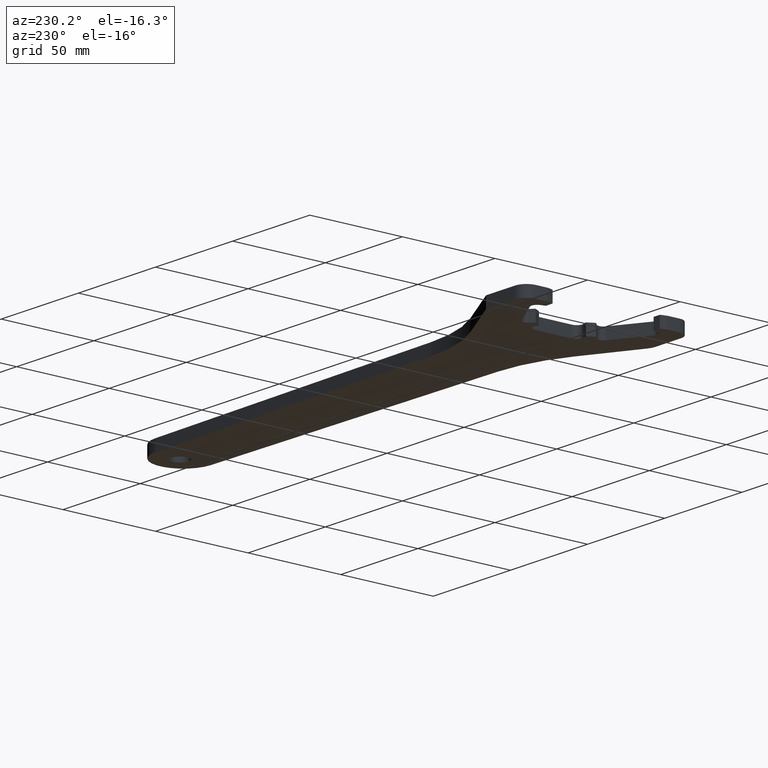
[diagram: clean part render]
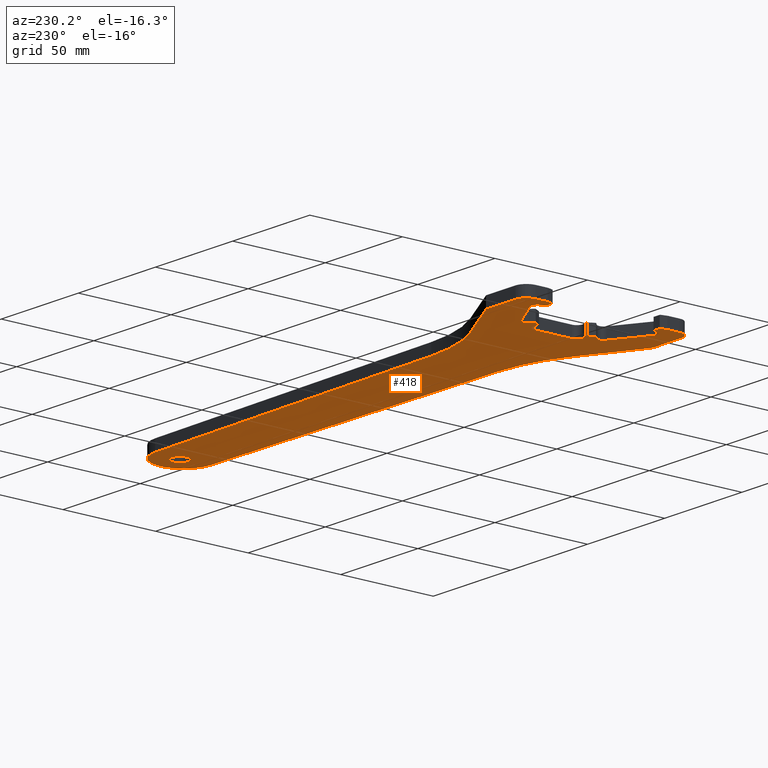
[diagram: same view with one face highlighted and labeled with its STEP entity id]
A machine part, auxiliary view. The second image highlights one B-rep face of the part: STEP entity #418.
In plain terms, the highlighted planar face has unit normal (0, 0, 1).
Its self-contained STEP definition (entity closure, byte-faithful):
#2 = CIRCLE ( 'NONE', #1510, 80.00000000000000000 ) ;
#7 = VERTEX_POINT ( 'NONE', #1473 ) ;
#13 = CARTESIAN_POINT ( 'NONE',  ( -3.016635672999999700, 38.83084647499998700, 0.0000000000000000000 ) ) ;
#14 = VERTEX_POINT ( 'NONE', #666 ) ;
#16 = CARTESIAN_POINT ( 'NONE',  ( 273.9833643297888000, 0.0000000000000000000, 0.0000000000000000000 ) ) ;
#17 = AXIS2_PLACEMENT_3D ( 'NONE', #1421, #649, #1554 ) ;
#19 = AXIS2_PLACEMENT_3D ( 'NONE', #47, #929, #186 ) ;
#26 = ORIENTED_EDGE ( 'NONE', *, *, #1284, .F. ) ;
#36 = CARTESIAN_POINT ( 'NONE',  ( -3.016635672999999700, -38.83084647553874900, 0.0000000000000000000 ) ) ;
#42 = ORIENTED_EDGE ( 'NONE', *, *, #836, .F. ) ;
#47 = CARTESIAN_POINT ( 'NONE',  ( 24.53900972800000300, 16.29529459299999800, 0.0000000000000000000 ) ) ;
#54 = CIRCLE ( 'NONE', #340, 0.4000000000000004100 ) ;
#70 = DIRECTION ( 'NONE',  ( 0.2488483512324421700, -0.9685424606535817400, 0.0000000000000000000 ) ) ;
#71 = CARTESIAN_POINT ( 'NONE',  ( 272.2333643269999500, 14.99791652200000100, 0.0000000000000000000 ) ) ;
#86 = CARTESIAN_POINT ( 'NONE',  ( -1.843180906000000400, -29.39999999999999900, 0.0000000000000000000 ) ) ;
#87 = DIRECTION ( 'NONE',  ( -1.000000000000000000, 0.0000000000000000000, 0.0000000000000000000 ) ) ;
#89 = CIRCLE ( 'NONE', #941, 2.999999999999999100 ) ;
#93 = CARTESIAN_POINT ( 'NONE',  ( -3.016635673000005000, 32.35979766100003700, -1.084202172485504400E-016 ) ) ;
#94 = CARTESIAN_POINT ( 'NONE',  ( 28.72244948499999500, -13.31577161400000100, 0.0000000000000000000 ) ) ;
#95 = CIRCLE ( 'NONE', #1190, 7.999999999999996400 ) ;
#106 = DIRECTION ( 'NONE',  ( -1.000000000000000000, 0.0000000000000000000, 0.0000000000000000000 ) ) ;
#109 = EDGE_CURVE ( 'NONE', #730, #1346, #920, .T. ) ;
#114 = CARTESIAN_POINT ( 'NONE',  ( 7.226659042171187200, 33.35482269090114500, 2.168404344971008900E-016 ) ) ;
#120 = VERTEX_POINT ( 'NONE', #475 ) ;
#123 = VECTOR ( 'NONE', #1587, 1000.000000000000000 ) ;
#126 = EDGE_CURVE ( 'NONE', #157, #1552, #1232, .T. ) ;
#129 = CARTESIAN_POINT ( 'NONE',  ( 24.13900972800000800, 16.29529459299999800, 0.0000000000000000000 ) ) ;
#131 = AXIS2_PLACEMENT_3D ( 'NONE', #16, #898, #150 ) ;
#132 = CARTESIAN_POINT ( 'NONE',  ( 273.9833643297888000, 0.0000000000000000000, 0.0000000000000000000 ) ) ;
#135 = VECTOR ( 'NONE', #1194, 1000.000000000000100 ) ;
#138 = ORIENTED_EDGE ( 'NONE', *, *, #214, .F. ) ;
#139 = CARTESIAN_POINT ( 'NONE',  ( 142.8533643269999800, -28.99999998928748500, 0.0000000000000000000 ) ) ;
#141 = CARTESIAN_POINT ( 'NONE',  ( 2.828881562999999900, -31.53320361500000500, 0.0000000000000000000 ) ) ;
#144 = LINE ( 'NONE', #949, #755 ) ;
#147 = EDGE_CURVE ( 'NONE', #7, #497, #883, .T. ) ;
#150 = DIRECTION ( 'NONE',  ( 1.000000000000000000, 0.0000000000000000000, 0.0000000000000000000 ) ) ;
#156 = AXIS2_PLACEMENT_3D ( 'NONE', #1357, #595, #1494 ) ;
#157 = VERTEX_POINT ( 'NONE', #1618 ) ;
#171 = CARTESIAN_POINT ( 'NONE',  ( 24.25909763881149300, 16.58103787281533700, 3.252606517456513300E-016 ) ) ;
#173 = AXIS2_PLACEMENT_3D ( 'NONE', #1227, #459, #1342 ) ;
#175 = VERTEX_POINT ( 'NONE', #114 ) ;
#178 = ORIENTED_EDGE ( 'NONE', *, *, #1579, .F. ) ;
#181 = CIRCLE ( 'NONE', #372, 6.000000000000000000 ) ;
#186 = DIRECTION ( 'NONE',  ( -1.000000000000000000, 0.0000000000000000000, 0.0000000000000000000 ) ) ;
#189 = VECTOR ( 'NONE', #1269, 1000.000000000000200 ) ;
#193 = DIRECTION ( 'NONE',  ( -0.0000000000000000000, -0.0000000000000000000, 1.000000000000000000 ) ) ;
#203 = EDGE_CURVE ( 'NONE', #305, #688, #1146, .T. ) ;
#213 = ORIENTED_EDGE ( 'NONE', *, *, #126, .F. ) ;
#214 = EDGE_CURVE ( 'NONE', #965, #157, #1189, .T. ) ;
#216 = LINE ( 'NONE', #919, #834 ) ;
#219 = DIRECTION ( 'NONE',  ( -1.000000000000000000, 0.0000000000000000000, 0.0000000000000000000 ) ) ;
#227 = EDGE_CURVE ( 'NONE', #1384, #730, #181, .T. ) ;
#234 = CIRCLE ( 'NONE', #1175, 3.000000000000000900 ) ;
#236 = LINE ( 'NONE', #614, #189 ) ;
#244 = VERTEX_POINT ( 'NONE', #1472 ) ;
#246 = EDGE_CURVE ( 'NONE', #1431, #1292, #425, .T. ) ;
#249 = LINE ( 'NONE', #1047, #627 ) ;
#250 = LINE ( 'NONE', #71, #1254 ) ;
#254 = ORIENTED_EDGE ( 'NONE', *, *, #387, .F. ) ;
#256 = AXIS2_PLACEMENT_3D ( 'NONE', #306, #1200, #429 ) ;
#257 = DIRECTION ( 'NONE',  ( 1.000000000000000000, 0.0000000000000000000, 0.0000000000000000000 ) ) ;
#261 = PLANE ( 'NONE',  #1392 ) ;
#264 = ORIENTED_EDGE ( 'NONE', *, *, #1048, .F. ) ;
#268 = LINE ( 'NONE', #773, #1239 ) ;
#270 = DIRECTION ( 'NONE',  ( -1.000000000000000000, -0.0000000000000000000, -0.0000000000000000000 ) ) ;
#271 = ORIENTED_EDGE ( 'NONE', *, *, #1532, .F. ) ;
#275 = DIRECTION ( 'NONE',  ( 0.0000000000000000000, 0.0000000000000000000, -1.000000000000000000 ) ) ;
#281 = CIRCLE ( 'NONE', #1362, 14.99999999999995700 ) ;
#286 = ORIENTED_EDGE ( 'NONE', *, *, #227, .F. ) ;
#289 = DIRECTION ( 'NONE',  ( 0.7143581998948572700, -0.6997802242439973300, 0.0000000000000000000 ) ) ;
#296 = LINE ( 'NONE', #951, #1606 ) ;
#298 = EDGE_CURVE ( 'NONE', #404, #1406, #600, .T. ) ;
#300 = VERTEX_POINT ( 'NONE', #812 ) ;
#304 = CARTESIAN_POINT ( 'NONE',  ( 52.35697664499999600, 28.02713572100000400, 0.0000000000000000000 ) ) ;
#305 = VERTEX_POINT ( 'NONE', #1325 ) ;
#306 = CARTESIAN_POINT ( 'NONE',  ( 29.49890662000000000, 10.41799413500000100, 0.0000000000000000000 ) ) ;
#311 = VECTOR ( 'NONE', #1479, 1000.000000000000000 ) ;
#312 = CARTESIAN_POINT ( 'NONE',  ( 25.89369839926561300, -18.18228118026019000, 0.0000000000000000000 ) ) ;
#317 = CARTESIAN_POINT ( 'NONE',  ( 32.49890649610000500, 0.0000000000000000000, 0.0000000000000000000 ) ) ;
#322 = CARTESIAN_POINT ( 'NONE',  ( 2.150111701000000600, 29.00000000000000000, 0.0000000000000000000 ) ) ;
#324 = AXIS2_PLACEMENT_3D ( 'NONE', #1025, #275, #1162 ) ;
#330 = EDGE_CURVE ( 'NONE', #1386, #120, #250, .T. ) ;
#331 = VERTEX_POINT ( 'NONE', #950 ) ;
#340 = AXIS2_PLACEMENT_3D ( 'NONE', #86, #961, #219 ) ;
#342 = CARTESIAN_POINT ( 'NONE',  ( 91.08415841000000100, -98.02860279499999800, 0.0000000000000000000 ) ) ;
#347 = ORIENTED_EDGE ( 'NONE', *, *, #1497, .F. ) ;
#357 = ORIENTED_EDGE ( 'NONE', *, *, #1140, .F. ) ;
#360 = CARTESIAN_POINT ( 'NONE',  ( 89.75082507700001600, -18.03971467699999900, 0.0000000000000000000 ) ) ;
#364 = ORIENTED_EDGE ( 'NONE', *, *, #979, .T. ) ;
#371 = CARTESIAN_POINT ( 'NONE',  ( 142.8533643269999800, 28.99999998928748800, 0.0000000000000000000 ) ) ;
#372 = AXIS2_PLACEMENT_3D ( 'NONE', #1594, #832, #87 ) ;
#375 = CARTESIAN_POINT ( 'NONE',  ( 32.49890655805000300, 10.41799413500000100, 0.0000000000000000000 ) ) ;
#378 = VERTEX_POINT ( 'NONE', #129 ) ;
#380 = CARTESIAN_POINT ( 'NONE',  ( 24.53900972800000300, -16.29529459299999800, 0.0000000000000000000 ) ) ;
#386 = VECTOR ( 'NONE', #1348, 1000.000000000000000 ) ;
#387 = EDGE_CURVE ( 'NONE', #1519, #685, #828, .T. ) ;
#391 = CARTESIAN_POINT ( 'NONE',  ( 1.843180906000000600, -29.39999999999999900, 0.0000000000000000000 ) ) ;
#404 = VERTEX_POINT ( 'NONE', #375 ) ;
#411 = CIRCLE ( 'NONE', #256, 2.999999999999999100 ) ;
#416 = VECTOR ( 'NONE', #1198, 1000.000000000000100 ) ;
#418 = ADVANCED_FACE ( 'NONE', ( #1096, #741 ), #261, .F. ) ;
#421 = VERTEX_POINT ( 'NONE', #1267 ) ;
#425 = LINE ( 'NONE', #94, #1388 ) ;
#429 = DIRECTION ( 'NONE',  ( -1.000000000000000000, 0.0000000000000000000, 0.0000000000000000000 ) ) ;
#432 = EDGE_CURVE ( 'NONE', #1500, #706, #778, .T. ) ;
#435 = DIRECTION ( 'NONE',  ( -0.0000000000000000000, -1.000000000000000000, -0.0000000000000000000 ) ) ;
#440 = ORIENTED_EDGE ( 'NONE', *, *, #761, .T. ) ;
#444 = ORIENTED_EDGE ( 'NONE', *, *, #596, .F. ) ;
#449 = DIRECTION ( 'NONE',  ( -0.0000000000000000000, -0.0000000000000000000, 1.000000000000000000 ) ) ;
#453 = LINE ( 'NONE', #684, #123 ) ;
#455 = DIRECTION ( 'NONE',  ( -0.0000000000000000000, -0.0000000000000000000, 1.000000000000000000 ) ) ;
#459 = DIRECTION ( 'NONE',  ( 0.0000000000000000000, 0.0000000000000000000, -1.000000000000000000 ) ) ;
#461 = LINE ( 'NONE', #1308, #135 ) ;
#463 = DIRECTION ( 'NONE',  ( -1.000000000000000000, 0.0000000000000000000, 0.0000000000000000000 ) ) ;
#473 = CARTESIAN_POINT ( 'NONE',  ( 2.983364327615311200, 44.83084647499999400, 0.0000000000000000000 ) ) ;
#474 = LINE ( 'NONE', #1450, #847 ) ;
#475 = CARTESIAN_POINT ( 'NONE',  ( 89.75082507693063900, 18.03971467700116800, -2.168404344971008900E-016 ) ) ;
#483 = EDGE_CURVE ( 'NONE', #1058, #404, #411, .T. ) ;
#497 = VERTEX_POINT ( 'NONE', #935 ) ;
#500 = VERTEX_POINT ( 'NONE', #1070 ) ;
#507 = EDGE_CURVE ( 'NONE', #1406, #1431, #89, .T. ) ;
#509 = DIRECTION ( 'NONE',  ( -1.000000000000000000, 0.0000000000000000000, 0.0000000000000000000 ) ) ;
#513 = VECTOR ( 'NONE', #270, 1000.000000000000000 ) ;
#518 = DIRECTION ( 'NONE',  ( -1.000000000000000000, 0.0000000000000000000, 0.0000000000000000000 ) ) ;
#530 = DIRECTION ( 'NONE',  ( -0.0000000000000000000, -0.0000000000000000000, 1.000000000000000000 ) ) ;
#535 = CARTESIAN_POINT ( 'NONE',  ( 5.726659042000000500, -30.75674647899999700, 0.0000000000000000000 ) ) ;
#537 = VECTOR ( 'NONE', #711, 1000.000000000000000 ) ;
#539 = ORIENTED_EDGE ( 'NONE', *, *, #900, .F. ) ;
#544 = CARTESIAN_POINT ( 'NONE',  ( 91.08415841000000100, 98.02860279499999800, 0.0000000000000000000 ) ) ;
#547 = VECTOR ( 'NONE', #1261, 1000.000000000000100 ) ;
#548 = VERTEX_POINT ( 'NONE', #1320 ) ;
#556 = CARTESIAN_POINT ( 'NONE',  ( 24.19259956670551000, -16.09529459306513000, 0.0000000000000000000 ) ) ;
#585 = CARTESIAN_POINT ( 'NONE',  ( 25.89369839900000200, 18.18228118000000000, 0.0000000000000000000 ) ) ;
#586 = DIRECTION ( 'NONE',  ( -0.0000000000000000000, -1.000000000000000000, -0.0000000000000000000 ) ) ;
#589 = EDGE_CURVE ( 'NONE', #1018, #1500, #650, .T. ) ;
#592 = CARTESIAN_POINT ( 'NONE',  ( 142.8533643269999800, -44.83084647499999400, 0.0000000000000000000 ) ) ;
#595 = DIRECTION ( 'NONE',  ( 0.0000000000000000000, 0.0000000000000000000, -1.000000000000000000 ) ) ;
#596 = EDGE_CURVE ( 'NONE', #1087, #300, #296, .T. ) ;
#599 = CIRCLE ( 'NONE', #17, 3.000000000000000900 ) ;
#600 = LINE ( 'NONE', #317, #1584 ) ;
#612 = CARTESIAN_POINT ( 'NONE',  ( -3.016635672999999200, -44.83084647499999400, 0.0000000000000000000 ) ) ;
#614 = CARTESIAN_POINT ( 'NONE',  ( 23.79065301100000000, -43.83099318299999700, 0.0000000000000000000 ) ) ;
#617 = ORIENTED_EDGE ( 'NONE', *, *, #507, .F. ) ;
#624 = EDGE_CURVE ( 'NONE', #421, #1018, #268, .T. ) ;
#625 = LINE ( 'NONE', #969, #311 ) ;
#627 = VECTOR ( 'NONE', #289, 1000.000000000000000 ) ;
#632 = AXIS2_PLACEMENT_3D ( 'NONE', #1221, #455, #1334 ) ;
#639 = DIRECTION ( 'NONE',  ( -0.4999999998826292800, -0.8660254038522027200, 0.0000000000000000000 ) ) ;
#648 = DIRECTION ( 'NONE',  ( -1.000000000000000000, 0.0000000000000000000, 0.0000000000000000000 ) ) ;
#649 = DIRECTION ( 'NONE',  ( 0.0000000000000000000, 0.0000000000000000000, -1.000000000000000000 ) ) ;
#650 = CIRCLE ( 'NONE', #1185, 0.3999999999999975800 ) ;
#653 = CARTESIAN_POINT ( 'NONE',  ( -2.153400302623815800, 28.99999999464374800, 0.0000000000000000000 ) ) ;
#656 = DIRECTION ( 'NONE',  ( -0.0000000000000000000, -0.0000000000000000000, 1.000000000000000000 ) ) ;
#658 = DIRECTION ( 'NONE',  ( -1.000000000000000000, 0.0000000000000000000, 0.0000000000000000000 ) ) ;
#660 = VERTEX_POINT ( 'NONE', #1043 ) ;
#665 = EDGE_CURVE ( 'NONE', #300, #1363, #234, .T. ) ;
#666 = CARTESIAN_POINT ( 'NONE',  ( 2.828881562933168100, 31.53320361415655500, 0.0000000000000000000 ) ) ;
#669 = CARTESIAN_POINT ( 'NONE',  ( 52.35697662698923700, -28.02713573086294800, 0.0000000000000000000 ) ) ;
#672 = AXIS2_PLACEMENT_3D ( 'NONE', #391, #1280, #518 ) ;
#674 = CARTESIAN_POINT ( 'NONE',  ( 29.49890662000000000, -10.41799413500000100, 0.0000000000000000000 ) ) ;
#675 = ORIENTED_EDGE ( 'NONE', *, *, #861, .T. ) ;
#677 = CARTESIAN_POINT ( 'NONE',  ( 25.29435772644390900, 22.92343199149771800, 0.0000000000000000000 ) ) ;
#684 = CARTESIAN_POINT ( 'NONE',  ( -3.016635672999999200, 0.0000000000000000000, 0.0000000000000000000 ) ) ;
#685 = VERTEX_POINT ( 'NONE', #923 ) ;
#688 = VERTEX_POINT ( 'NONE', #1051 ) ;
#692 = EDGE_LOOP ( 'NONE', ( #1534, #1378, #765, #357, #42, #178, #213, #138, #264, #1445, #831, #1192, #675, #944, #1626, #444, #947, #776, #1411, #789, #888, #539, #1235, #617, #1208, #1297, #271, #1614, #347, #440, #364, #1124, #26, #958, #1000, #720, #254, #1547, #1224, #286, #1592, #1337, #1455 ) ) ;
#700 = CARTESIAN_POINT ( 'NONE',  ( 26.48571825200784200, -12.71644128673879400, 0.0000000000000000000 ) ) ;
#706 = VERTEX_POINT ( 'NONE', #1553 ) ;
#710 = VERTEX_POINT ( 'NONE', #171 ) ;
#711 = DIRECTION ( 'NONE',  ( 1.000000000000000000, 0.0000000000000000000, 0.0000000000000000000 ) ) ;
#717 = CIRCLE ( 'NONE', #173, 2.999999999999999100 ) ;
#720 = ORIENTED_EDGE ( 'NONE', *, *, #1099, .F. ) ;
#725 = EDGE_CURVE ( 'NONE', #1363, #1007, #1153, .T. ) ;
#726 = ORIENTED_EDGE ( 'NONE', *, *, #859, .T. ) ;
#730 = VERTEX_POINT ( 'NONE', #13 ) ;
#741 = FACE_OUTER_BOUND ( 'NONE', #692, .T. ) ;
#743 = DIRECTION ( 'NONE',  ( 1.000000000000000000, 0.0000000000000000000, 0.0000000000000000000 ) ) ;
#745 = AXIS2_PLACEMENT_3D ( 'NONE', #1617, #852, #106 ) ;
#748 = DIRECTION ( 'NONE',  ( 1.000000000000000000, 0.0000000000000000000, 0.0000000000000000000 ) ) ;
#755 = VECTOR ( 'NONE', #1084, 999.9999999999998900 ) ;
#761 = EDGE_CURVE ( 'NONE', #771, #378, #1394, .T. ) ;
#765 = ORIENTED_EDGE ( 'NONE', *, *, #203, .F. ) ;
#771 = VERTEX_POINT ( 'NONE', #1400 ) ;
#773 = CARTESIAN_POINT ( 'NONE',  ( 25.11419001950000100, -14.49905310500000000, 0.0000000000000000000 ) ) ;
#776 = ORIENTED_EDGE ( 'NONE', *, *, #953, .F. ) ;
#778 = CIRCLE ( 'NONE', #1415, 0.3999999999999975800 ) ;
#779 = CARTESIAN_POINT ( 'NONE',  ( 52.35697664539928600, 28.02713572077911100, -2.168404344971008900E-016 ) ) ;
#789 = ORIENTED_EDGE ( 'NONE', *, *, #589, .F. ) ;
#792 = EDGE_CURVE ( 'NONE', #244, #500, #1563, .T. ) ;
#793 = VECTOR ( 'NONE', #1590, 1000.000000000000100 ) ;
#795 = EDGE_CURVE ( 'NONE', #175, #1022, #894, .T. ) ;
#799 = VECTOR ( 'NONE', #1151, 1000.000000000000100 ) ;
#812 = CARTESIAN_POINT ( 'NONE',  ( 7.226659041893699800, -33.35482269073802500, 0.0000000000000000000 ) ) ;
#813 = DIRECTION ( 'NONE',  ( -1.000000000000000000, 0.0000000000000000000, 0.0000000000000000000 ) ) ;
#815 = DIRECTION ( 'NONE',  ( -0.9998611014647529300, 0.01666666666406415400, 0.0000000000000000000 ) ) ;
#828 = LINE ( 'NONE', #371, #1133 ) ;
#831 = ORIENTED_EDGE ( 'NONE', *, *, #1282, .T. ) ;
#832 = DIRECTION ( 'NONE',  ( -0.0000000000000000000, -0.0000000000000000000, 1.000000000000000000 ) ) ;
#834 = VECTOR ( 'NONE', #1049, 1000.000000000000000 ) ;
#836 = EDGE_CURVE ( 'NONE', #1630, #1199, #236, .T. ) ;
#846 = CARTESIAN_POINT ( 'NONE',  ( 2.828881562825937400, -31.53320361435039800, 2.168404344971008900E-016 ) ) ;
#847 = VECTOR ( 'NONE', #70, 1000.000000000000200 ) ;
#849 = EDGE_CURVE ( 'NONE', #1624, #902, #1490, .T. ) ;
#852 = DIRECTION ( 'NONE',  ( 0.0000000000000000000, 0.0000000000000000000, -1.000000000000000000 ) ) ;
#859 = EDGE_CURVE ( 'NONE', #500, #244, #1154, .T. ) ;
#861 = EDGE_CURVE ( 'NONE', #1624, #1007, #1438, .T. ) ;
#879 = CARTESIAN_POINT ( 'NONE',  ( 7.226659042000000500, 33.35482269099998800, 0.0000000000000000000 ) ) ;
#883 = CIRCLE ( 'NONE', #156, 0.4000000000000010200 ) ;
#888 = ORIENTED_EDGE ( 'NONE', *, *, #624, .F. ) ;
#894 = LINE ( 'NONE', #879, #547 ) ;
#898 = DIRECTION ( 'NONE',  ( 0.0000000000000000000, 0.0000000000000000000, 1.000000000000000000 ) ) ;
#900 = EDGE_CURVE ( 'NONE', #1292, #421, #1322, .T. ) ;
#902 = VERTEX_POINT ( 'NONE', #1548 ) ;
#910 = CARTESIAN_POINT ( 'NONE',  ( 21.98336432700000700, 44.83084647499999400, 0.0000000000000000000 ) ) ;
#918 = EDGE_CURVE ( 'NONE', #14, #175, #599, .T. ) ;
#919 = CARTESIAN_POINT ( 'NONE',  ( 24.19259956699999800, 16.09529459299999800, 0.0000000000000000000 ) ) ;
#920 = LINE ( 'NONE', #1480, #1298 ) ;
#921 = VERTEX_POINT ( 'NONE', #910 ) ;
#923 = CARTESIAN_POINT ( 'NONE',  ( 2.150111699564788600, 28.99999999464374100, -1.084202172485504400E-016 ) ) ;
#929 = DIRECTION ( 'NONE',  ( 0.0000000000000000000, 0.0000000000000000000, -1.000000000000000000 ) ) ;
#933 = VERTEX_POINT ( 'NONE', #779 ) ;
#934 = CARTESIAN_POINT ( 'NONE',  ( 19.91793483400000000, -36.83084647499999400, 0.0000000000000000000 ) ) ;
#935 = CARTESIAN_POINT ( 'NONE',  ( 26.03578047204722500, 12.90281161691820300, 0.0000000000000000000 ) ) ;
#937 = EDGE_CURVE ( 'NONE', #688, #1386, #281, .T. ) ;
#941 = AXIS2_PLACEMENT_3D ( 'NONE', #674, #1577, #813 ) ;
#944 = ORIENTED_EDGE ( 'NONE', *, *, #725, .F. ) ;
#947 = ORIENTED_EDGE ( 'NONE', *, *, #1379, .F. ) ;
#949 = CARTESIAN_POINT ( 'NONE',  ( -2.230597890000000300, -29.30046066000000200, 0.0000000000000000000 ) ) ;
#950 = CARTESIAN_POINT ( 'NONE',  ( 25.89369839926561300, 18.18228118026019000, 3.252606517456513300E-016 ) ) ;
#951 = CARTESIAN_POINT ( 'NONE',  ( 25.29435772700000500, -22.92343199099999800, 0.0000000000000000000 ) ) ;
#953 = EDGE_CURVE ( 'NONE', #706, #1006, #249, .T. ) ;
#958 = ORIENTED_EDGE ( 'NONE', *, *, #795, .F. ) ;
#961 = DIRECTION ( 'NONE',  ( 0.0000000000000000000, 0.0000000000000000000, -1.000000000000000000 ) ) ;
#964 = EDGE_LOOP ( 'NONE', ( #1166, #726 ) ) ;
#965 = VERTEX_POINT ( 'NONE', #36 ) ;
#969 = CARTESIAN_POINT ( 'NONE',  ( 142.8533643269999800, 44.83084647499999400, 0.0000000000000000000 ) ) ;
#979 = EDGE_CURVE ( 'NONE', #378, #710, #1172, .T. ) ;
#990 = LINE ( 'NONE', #585, #386 ) ;
#1000 = ORIENTED_EDGE ( 'NONE', *, *, #918, .F. ) ;
#1006 = VERTEX_POINT ( 'NONE', #312 ) ;
#1007 = VERTEX_POINT ( 'NONE', #1204 ) ;
#1009 = DIRECTION ( 'NONE',  ( 0.0000000000000000000, 0.0000000000000000000, 1.000000000000000000 ) ) ;
#1018 = VERTEX_POINT ( 'NONE', #556 ) ;
#1022 = VERTEX_POINT ( 'NONE', #677 ) ;
#1025 = CARTESIAN_POINT ( 'NONE',  ( 24.53900972800000300, 16.29529459299999800, 0.0000000000000000000 ) ) ;
#1040 = VECTOR ( 'NONE', #1327, 1000.000000000000200 ) ;
#1043 = CARTESIAN_POINT ( 'NONE',  ( -3.016635672999997900, -32.35979766099997300, 0.0000000000000000000 ) ) ;
#1047 = CARTESIAN_POINT ( 'NONE',  ( 25.07639801900000300, -17.38165952649999800, 0.0000000000000000000 ) ) ;
#1048 = EDGE_CURVE ( 'NONE', #660, #965, #453, .T. ) ;
#1049 = DIRECTION ( 'NONE',  ( 0.4999999998826292800, -0.8660254038522026100, 0.0000000000000000000 ) ) ;
#1051 = CARTESIAN_POINT ( 'NONE',  ( 272.2333643271052800, -14.99791652198352700, 0.0000000000000000000 ) ) ;
#1058 = VERTEX_POINT ( 'NONE', #1218 ) ;
#1060 = CARTESIAN_POINT ( 'NONE',  ( 19.91793483553876200, -44.83084647499999400, 0.0000000000000000000 ) ) ;
#1066 = DIRECTION ( 'NONE',  ( -1.000000000000000000, -1.734723475976807900E-015, 0.0000000000000000000 ) ) ;
#1070 = CARTESIAN_POINT ( 'NONE',  ( 269.4833643297678200, 5.510910596188847800E-016, 0.0000000000000000000 ) ) ;
#1075 = CARTESIAN_POINT ( 'NONE',  ( 23.79065301098477600, -43.83099318300841000, -1.084202172485504400E-016 ) ) ;
#1082 = CARTESIAN_POINT ( 'NONE',  ( 25.29435772667719800, -22.92343199136302800, 0.0000000000000000000 ) ) ;
#1084 = DIRECTION ( 'NONE',  ( -0.2488483512171890100, -0.9685424606575009400, 0.0000000000000000000 ) ) ;
#1087 = VERTEX_POINT ( 'NONE', #1082 ) ;
#1095 = CIRCLE ( 'NONE', #745, 2.999999999999999100 ) ;
#1096 = FACE_BOUND ( 'NONE', #964, .T. ) ;
#1099 = EDGE_CURVE ( 'NONE', #685, #14, #1458, .T. ) ;
#1104 = DIRECTION ( 'NONE',  ( -0.9659258263503710500, 0.2588190448737357500, 0.0000000000000000000 ) ) ;
#1106 = AXIS2_PLACEMENT_3D ( 'NONE', #544, #1432, #658 ) ;
#1124 = ORIENTED_EDGE ( 'NONE', *, *, #1344, .F. ) ;
#1133 = VECTOR ( 'NONE', #743, 1000.000000000000000 ) ;
#1140 = EDGE_CURVE ( 'NONE', #1199, #305, #2, .T. ) ;
#1145 = DIRECTION ( 'NONE',  ( -1.000000000000000000, -8.673617379884087500E-015, 0.0000000000000000000 ) ) ;
#1146 = LINE ( 'NONE', #360, #793 ) ;
#1151 = DIRECTION ( 'NONE',  ( -0.2588190448737349200, 0.9659258263503712700, 0.0000000000000000000 ) ) ;
#1153 = LINE ( 'NONE', #141, #799 ) ;
#1154 = CIRCLE ( 'NONE', #131, 4.500000000020987700 ) ;
#1162 = DIRECTION ( 'NONE',  ( -1.000000000000000000, 0.0000000000000000000, 0.0000000000000000000 ) ) ;
#1166 = ORIENTED_EDGE ( 'NONE', *, *, #792, .T. ) ;
#1171 = CARTESIAN_POINT ( 'NONE',  ( 28.72244948518309500, -13.31577161404906200, -1.084202172485504400E-016 ) ) ;
#1172 = CIRCLE ( 'NONE', #19, 0.3999999999999975800 ) ;
#1175 = AXIS2_PLACEMENT_3D ( 'NONE', #535, #1420, #648 ) ;
#1184 = CARTESIAN_POINT ( 'NONE',  ( 24.13900972800000800, -16.29529459299999800, 0.0000000000000000000 ) ) ;
#1185 = AXIS2_PLACEMENT_3D ( 'NONE', #1217, #449, #1145 ) ;
#1189 = CIRCLE ( 'NONE', #632, 6.000000000000000000 ) ;
#1190 = AXIS2_PLACEMENT_3D ( 'NONE', #934, #193, #1066 ) ;
#1192 = ORIENTED_EDGE ( 'NONE', *, *, #849, .F. ) ;
#1194 = DIRECTION ( 'NONE',  ( 0.9659258263503710500, 0.2588190448737357500, 0.0000000000000000000 ) ) ;
#1198 = DIRECTION ( 'NONE',  ( -0.8750183384324601300, 0.4840897720535900000, 0.0000000000000000000 ) ) ;
#1199 = VERTEX_POINT ( 'NONE', #669 ) ;
#1200 = DIRECTION ( 'NONE',  ( 0.0000000000000000000, 0.0000000000000000000, -1.000000000000000000 ) ) ;
#1204 = CARTESIAN_POINT ( 'NONE',  ( 2.229551236024404700, -29.29647238209107800, 2.168404344971008900E-016 ) ) ;
#1208 = ORIENTED_EDGE ( 'NONE', *, *, #298, .F. ) ;
#1217 = CARTESIAN_POINT ( 'NONE',  ( 24.53900972800000300, -16.29529459299999800, 0.0000000000000000000 ) ) ;
#1218 = CARTESIAN_POINT ( 'NONE',  ( 28.72244948503547900, 13.31577161398431600, 0.0000000000000000000 ) ) ;
#1221 = CARTESIAN_POINT ( 'NONE',  ( 2.983364327000000300, -38.83084647499998700, 0.0000000000000000000 ) ) ;
#1224 = ORIENTED_EDGE ( 'NONE', *, *, #109, .F. ) ;
#1227 = CARTESIAN_POINT ( 'NONE',  ( 23.79435772700000500, 20.32535578000000200, 0.0000000000000000000 ) ) ;
#1231 = DIRECTION ( 'NONE',  ( 0.0000000000000000000, 0.0000000000000000000, -1.000000000000000000 ) ) ;
#1232 = LINE ( 'NONE', #592, #537 ) ;
#1235 = ORIENTED_EDGE ( 'NONE', *, *, #246, .F. ) ;
#1239 = VECTOR ( 'NONE', #639, 1000.000000000000100 ) ;
#1248 = EDGE_CURVE ( 'NONE', #1346, #1519, #474, .T. ) ;
#1249 = EDGE_CURVE ( 'NONE', #548, #660, #144, .T. ) ;
#1254 = VECTOR ( 'NONE', #815, 1000.000000000000100 ) ;
#1261 = DIRECTION ( 'NONE',  ( 0.8660254037724382000, -0.5000000000207852600, 0.0000000000000000000 ) ) ;
#1267 = CARTESIAN_POINT ( 'NONE',  ( 26.03578047204722500, -12.90281161691820300, 0.0000000000000000000 ) ) ;
#1269 = DIRECTION ( 'NONE',  ( 0.8750183384201448700, 0.4840897720758505200, 0.0000000000000000000 ) ) ;
#1272 = DIRECTION ( 'NONE',  ( -0.0000000000000000000, -0.0000000000000000000, 1.000000000000000000 ) ) ;
#1280 = DIRECTION ( 'NONE',  ( 0.0000000000000000000, 0.0000000000000000000, -1.000000000000000000 ) ) ;
#1282 = EDGE_CURVE ( 'NONE', #548, #902, #54, .T. ) ;
#1284 = EDGE_CURVE ( 'NONE', #1022, #331, #717, .T. ) ;
#1292 = VERTEX_POINT ( 'NONE', #700 ) ;
#1295 = CARTESIAN_POINT ( 'NONE',  ( 26.38219063399999700, -13.10281161700000000, 0.0000000000000000000 ) ) ;
#1297 = ORIENTED_EDGE ( 'NONE', *, *, #483, .F. ) ;
#1298 = VECTOR ( 'NONE', #586, 1000.000000000000000 ) ;
#1308 = CARTESIAN_POINT ( 'NONE',  ( 26.48571825199999500, 12.71644128700000000, 0.0000000000000000000 ) ) ;
#1320 = CARTESIAN_POINT ( 'NONE',  ( -2.230597889949469600, -29.30046065980333100, 0.0000000000000000000 ) ) ;
#1322 = CIRCLE ( 'NONE', #1537, 0.4000000000000010200 ) ;
#1325 = CARTESIAN_POINT ( 'NONE',  ( 89.75082507693063900, -18.03971467700116800, 0.0000000000000000000 ) ) ;
#1327 = DIRECTION ( 'NONE',  ( 0.2588190447813189500, 0.9659258263751340200, 0.0000000000000000000 ) ) ;
#1330 = DIRECTION ( 'NONE',  ( -0.8660254037724382000, -0.5000000000207852600, 0.0000000000000000000 ) ) ;
#1331 = EDGE_CURVE ( 'NONE', #921, #1384, #625, .T. ) ;
#1334 = DIRECTION ( 'NONE',  ( -1.000000000000000000, 0.0000000000000000000, 0.0000000000000000000 ) ) ;
#1337 = ORIENTED_EDGE ( 'NONE', *, *, #1567, .F. ) ;
#1342 = DIRECTION ( 'NONE',  ( -1.000000000000000000, 0.0000000000000000000, 0.0000000000000000000 ) ) ;
#1344 = EDGE_CURVE ( 'NONE', #331, #710, #990, .T. ) ;
#1346 = VERTEX_POINT ( 'NONE', #93 ) ;
#1348 = DIRECTION ( 'NONE',  ( -0.7143581998948572700, -0.6997802242439973300, 0.0000000000000000000 ) ) ;
#1353 = CARTESIAN_POINT ( 'NONE',  ( 272.2333643269806200, 14.99791652200032000, -2.168404344971008900E-016 ) ) ;
#1357 = CARTESIAN_POINT ( 'NONE',  ( 26.38219063399999700, 13.10281161700000000, 0.0000000000000000000 ) ) ;
#1362 = AXIS2_PLACEMENT_3D ( 'NONE', #1429, #656, #1561 ) ;
#1363 = VERTEX_POINT ( 'NONE', #846 ) ;
#1378 = ORIENTED_EDGE ( 'NONE', *, *, #937, .F. ) ;
#1379 = EDGE_CURVE ( 'NONE', #1006, #1087, #1095, .T. ) ;
#1384 = VERTEX_POINT ( 'NONE', #473 ) ;
#1386 = VERTEX_POINT ( 'NONE', #1353 ) ;
#1388 = VECTOR ( 'NONE', #1104, 1000.000000000000100 ) ;
#1392 = AXIS2_PLACEMENT_3D ( 'NONE', #612, #1517, #748 ) ;
#1394 = CIRCLE ( 'NONE', #324, 0.3999999999999975800 ) ;
#1400 = CARTESIAN_POINT ( 'NONE',  ( 24.19259956692222600, 16.09529459313470700, 0.0000000000000000000 ) ) ;
#1406 = VERTEX_POINT ( 'NONE', #1540 ) ;
#1411 = ORIENTED_EDGE ( 'NONE', *, *, #432, .F. ) ;
#1415 = AXIS2_PLACEMENT_3D ( 'NONE', #380, #1272, #509 ) ;
#1416 = DIRECTION ( 'NONE',  ( -1.000000000000000000, 1.301042606982602000E-014, 0.0000000000000000000 ) ) ;
#1420 = DIRECTION ( 'NONE',  ( 0.0000000000000000000, 0.0000000000000000000, -1.000000000000000000 ) ) ;
#1421 = CARTESIAN_POINT ( 'NONE',  ( 5.726659042000000500, 30.75674647899999700, 0.0000000000000000000 ) ) ;
#1423 = LINE ( 'NONE', #304, #416 ) ;
#1429 = CARTESIAN_POINT ( 'NONE',  ( 271.9833643269999500, 0.0000000000000000000, 0.0000000000000000000 ) ) ;
#1431 = VERTEX_POINT ( 'NONE', #1171 ) ;
#1432 = DIRECTION ( 'NONE',  ( 0.0000000000000000000, 0.0000000000000000000, -1.000000000000000000 ) ) ;
#1438 = CIRCLE ( 'NONE', #672, 0.4000000000000004100 ) ;
#1445 = ORIENTED_EDGE ( 'NONE', *, *, #1249, .F. ) ;
#1450 = CARTESIAN_POINT ( 'NONE',  ( -3.016635672999999200, 32.35979766099998800, 0.0000000000000000000 ) ) ;
#1455 = ORIENTED_EDGE ( 'NONE', *, *, #1531, .F. ) ;
#1458 = LINE ( 'NONE', #322, #1040 ) ;
#1472 = CARTESIAN_POINT ( 'NONE',  ( 278.4833643298097700, 0.0000000000000000000, 0.0000000000000000000 ) ) ;
#1473 = CARTESIAN_POINT ( 'NONE',  ( 26.48571825190891700, 12.71644128697559700, -1.084202172485504400E-016 ) ) ;
#1479 = DIRECTION ( 'NONE',  ( -1.000000000000000000, -0.0000000000000000000, -0.0000000000000000000 ) ) ;
#1480 = CARTESIAN_POINT ( 'NONE',  ( -3.016635672999999200, 0.0000000000000000000, 0.0000000000000000000 ) ) ;
#1490 = LINE ( 'NONE', #139, #513 ) ;
#1494 = DIRECTION ( 'NONE',  ( -1.000000000000000000, 0.0000000000000000000, 0.0000000000000000000 ) ) ;
#1497 = EDGE_CURVE ( 'NONE', #771, #497, #216, .T. ) ;
#1500 = VERTEX_POINT ( 'NONE', #1184 ) ;
#1506 = AXIS2_PLACEMENT_3D ( 'NONE', #132, #1009, #257 ) ;
#1510 = AXIS2_PLACEMENT_3D ( 'NONE', #342, #1231, #463 ) ;
#1517 = DIRECTION ( 'NONE',  ( 0.0000000000000000000, 0.0000000000000000000, 1.000000000000000000 ) ) ;
#1519 = VERTEX_POINT ( 'NONE', #653 ) ;
#1531 = EDGE_CURVE ( 'NONE', #120, #933, #1545, .T. ) ;
#1532 = EDGE_CURVE ( 'NONE', #7, #1058, #461, .T. ) ;
#1534 = ORIENTED_EDGE ( 'NONE', *, *, #330, .F. ) ;
#1537 = AXIS2_PLACEMENT_3D ( 'NONE', #1295, #530, #1416 ) ;
#1540 = CARTESIAN_POINT ( 'NONE',  ( 32.49890655805000300, -10.41799413561531100, 0.0000000000000000000 ) ) ;
#1545 = CIRCLE ( 'NONE', #1106, 80.00000000000000000 ) ;
#1547 = ORIENTED_EDGE ( 'NONE', *, *, #1248, .F. ) ;
#1548 = CARTESIAN_POINT ( 'NONE',  ( -1.843180906000000400, -28.99999999464374100, 0.0000000000000000000 ) ) ;
#1552 = VERTEX_POINT ( 'NONE', #1060 ) ;
#1553 = CARTESIAN_POINT ( 'NONE',  ( 24.25909763843112900, -16.58103787276338200, 0.0000000000000000000 ) ) ;
#1554 = DIRECTION ( 'NONE',  ( -1.000000000000000000, 0.0000000000000000000, 0.0000000000000000000 ) ) ;
#1561 = DIRECTION ( 'NONE',  ( -1.000000000000000000, 2.664535259100375700E-015, 0.0000000000000000000 ) ) ;
#1563 = CIRCLE ( 'NONE', #1506, 4.500000000020987700 ) ;
#1567 = EDGE_CURVE ( 'NONE', #933, #921, #1423, .T. ) ;
#1574 = CARTESIAN_POINT ( 'NONE',  ( 1.843180906000000600, -28.99999999464374100, 0.0000000000000000000 ) ) ;
#1577 = DIRECTION ( 'NONE',  ( 0.0000000000000000000, 0.0000000000000000000, -1.000000000000000000 ) ) ;
#1579 = EDGE_CURVE ( 'NONE', #1552, #1630, #95, .T. ) ;
#1584 = VECTOR ( 'NONE', #435, 1000.000000000000000 ) ;
#1587 = DIRECTION ( 'NONE',  ( -0.0000000000000000000, -1.000000000000000000, -0.0000000000000000000 ) ) ;
#1590 = DIRECTION ( 'NONE',  ( 0.9998611014647529300, 0.01666666666406415400, 0.0000000000000000000 ) ) ;
#1592 = ORIENTED_EDGE ( 'NONE', *, *, #1331, .F. ) ;
#1594 = CARTESIAN_POINT ( 'NONE',  ( 2.983364327000000300, 38.83084647499998700, 0.0000000000000000000 ) ) ;
#1606 = VECTOR ( 'NONE', #1330, 1000.000000000000100 ) ;
#1614 = ORIENTED_EDGE ( 'NONE', *, *, #147, .T. ) ;
#1617 = CARTESIAN_POINT ( 'NONE',  ( 23.79435772700000500, -20.32535578000000200, 0.0000000000000000000 ) ) ;
#1618 = CARTESIAN_POINT ( 'NONE',  ( 2.983364326999999900, -44.83084647499999400, 0.0000000000000000000 ) ) ;
#1624 = VERTEX_POINT ( 'NONE', #1574 ) ;
#1626 = ORIENTED_EDGE ( 'NONE', *, *, #665, .F. ) ;
#1630 = VERTEX_POINT ( 'NONE', #1075 ) ;